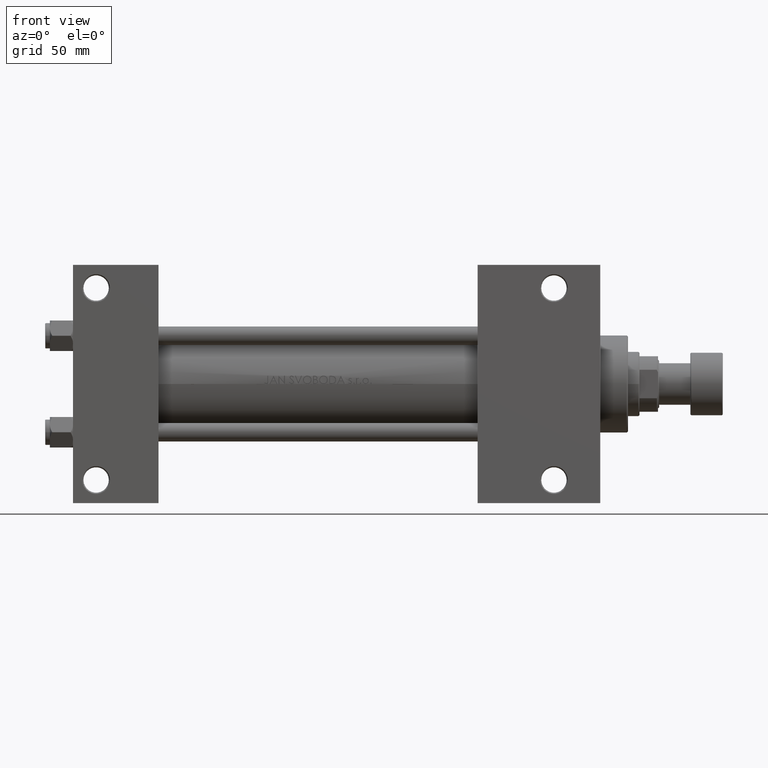
[diagram: clean part render]
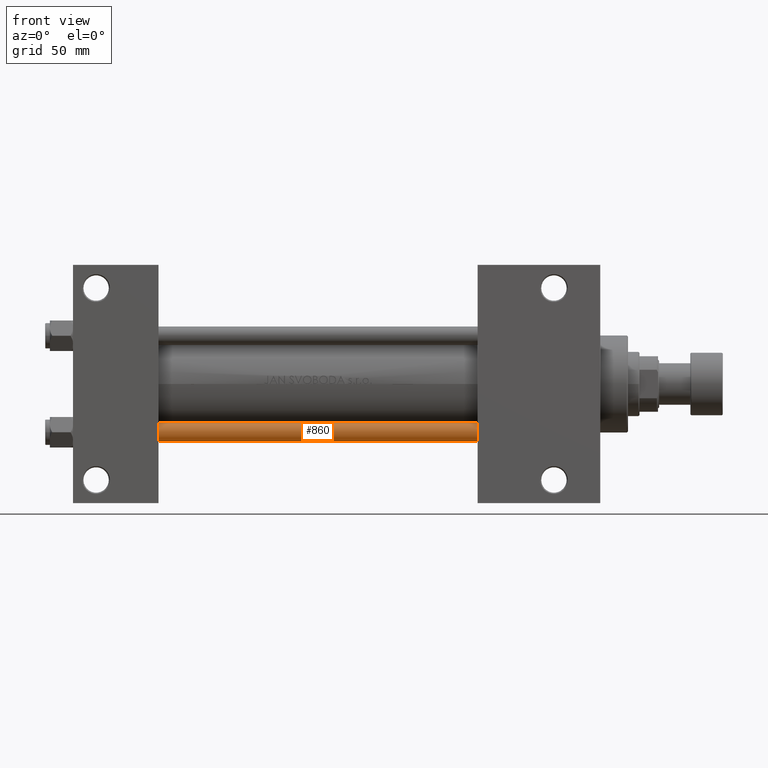
[diagram: same view with one face highlighted and labeled with its STEP entity id]
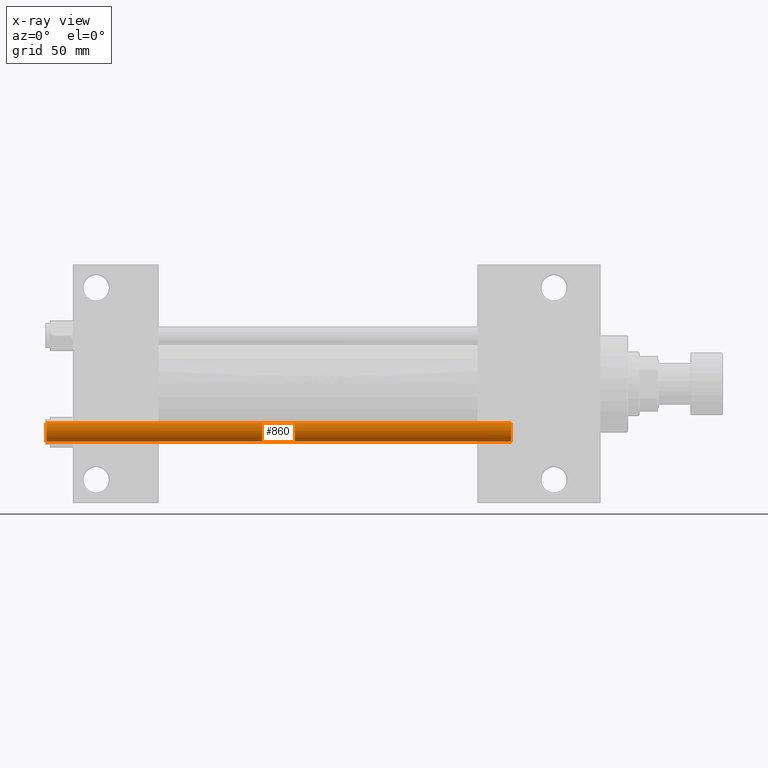
[diagram: x-ray of the same camera — body ghosted, the highlighted face saturated]
A machine part, front view. The second image highlights one B-rep face of the part: STEP entity #860.
The next image is the same camera in x-ray: the body ghosted, the highlighted face saturated — about 0% of this face is hidden behind the body in this view.
In plain terms, the highlighted cylindrical surface (edge-blend (fillet) strip) has radius 4 mm, axis along (-1, 0, 0).
Its self-contained STEP definition (entity closure, byte-faithful):
#95 = EDGE_CURVE ( 'NONE', #10308, #40565, #26661, .T. ) ;
#605 = VERTEX_POINT ( 'NONE', #12477 ) ;
#860 = ADVANCED_FACE ( 'NONE', ( #38378 ), #5065, .T. ) ;
#1667 = CARTESIAN_POINT ( 'NONE',  ( 0.000000000000000000, 0.000000000000000000, 202.0000000000000000 ) ) ;
#3901 = CIRCLE ( 'NONE', #13979, 4.000000000000000000 ) ;
#5065 = CYLINDRICAL_SURFACE ( 'NONE', #26704, 4.000000000000000000 ) ;
#5362 = VECTOR ( 'NONE', #20280, 1000.000000000000000 ) ;
#7141 = CARTESIAN_POINT ( 'NONE',  ( 4.000000000000000000, 4.898587196589412829E-16, 201.5000000000000000 ) ) ;
#10308 = VERTEX_POINT ( 'NONE', #23191 ) ;
#12477 = CARTESIAN_POINT ( 'NONE',  ( 4.000000000000000000, 4.898587196589412829E-16, 0.5000000000000004441 ) ) ;
#13979 = AXIS2_PLACEMENT_3D ( 'NONE', #47064, #25181, #40006 ) ;
#15685 = EDGE_CURVE ( 'NONE', #10308, #17854, #41680, .T. ) ;
#15707 = CARTESIAN_POINT ( 'NONE',  ( 0.000000000000000000, 0.000000000000000000, 201.5000000000000000 ) ) ;
#17854 = VERTEX_POINT ( 'NONE', #22550 ) ;
#20280 = DIRECTION ( 'NONE',  ( -0.000000000000000000, -0.000000000000000000, -1.000000000000000000 ) ) ;
#21248 = ORIENTED_EDGE ( 'NONE', *, *, #15685, .F. ) ;
#22487 = VECTOR ( 'NONE', #40239, 1000.000000000000000 ) ;
#22550 = CARTESIAN_POINT ( 'NONE',  ( -4.000000000000000000, 0.000000000000000000, 0.5000000000000004441 ) ) ;
#23191 = CARTESIAN_POINT ( 'NONE',  ( -4.000000000000000000, 0.000000000000000000, 201.5000000000000000 ) ) ;
#23534 = EDGE_LOOP ( 'NONE', ( #41467, #26811, #40080, #21248 ) ) ;
#25181 = DIRECTION ( 'NONE',  ( -0.000000000000000000, -0.000000000000000000, 1.000000000000000000 ) ) ;
#25410 = CARTESIAN_POINT ( 'NONE',  ( 4.000000000000000000, 4.898587196589412829E-16, 202.0000000000000000 ) ) ;
#26661 = CIRCLE ( 'NONE', #44506, 4.000000000000000000 ) ;
#26704 = AXIS2_PLACEMENT_3D ( 'NONE', #1667, #31081, #45914 ) ;
#26811 = ORIENTED_EDGE ( 'NONE', *, *, #41786, .T. ) ;
#31081 = DIRECTION ( 'NONE',  ( -0.000000000000000000, -0.000000000000000000, -1.000000000000000000 ) ) ;
#32695 = LINE ( 'NONE', #25410, #22487 ) ;
#33908 = CARTESIAN_POINT ( 'NONE',  ( -4.000000000000000000, 0.000000000000000000, 202.0000000000000000 ) ) ;
#38074 = DIRECTION ( 'NONE',  ( 1.000000000000000000, 0.000000000000000000, 0.000000000000000000 ) ) ;
#38378 = FACE_OUTER_BOUND ( 'NONE', #23534, .T. ) ;
#40006 = DIRECTION ( 'NONE',  ( 1.000000000000000000, 0.000000000000000000, 0.000000000000000000 ) ) ;
#40080 = ORIENTED_EDGE ( 'NONE', *, *, #43043, .T. ) ;
#40239 = DIRECTION ( 'NONE',  ( -0.000000000000000000, -0.000000000000000000, -1.000000000000000000 ) ) ;
#40565 = VERTEX_POINT ( 'NONE', #7141 ) ;
#41467 = ORIENTED_EDGE ( 'NONE', *, *, #95, .T. ) ;
#41680 = LINE ( 'NONE', #33908, #5362 ) ;
#41786 = EDGE_CURVE ( 'NONE', #40565, #605, #32695, .T. ) ;
#43043 = EDGE_CURVE ( 'NONE', #605, #17854, #3901, .T. ) ;
#44506 = AXIS2_PLACEMENT_3D ( 'NONE', #15707, #45848, #38074 ) ;
#45848 = DIRECTION ( 'NONE',  ( 0.000000000000000000, 0.000000000000000000, -1.000000000000000000 ) ) ;
#45914 = DIRECTION ( 'NONE',  ( -1.000000000000000000, 0.000000000000000000, 0.000000000000000000 ) ) ;
#47064 = CARTESIAN_POINT ( 'NONE',  ( 0.000000000000000000, 0.000000000000000000, 0.5000000000000004441 ) ) ;